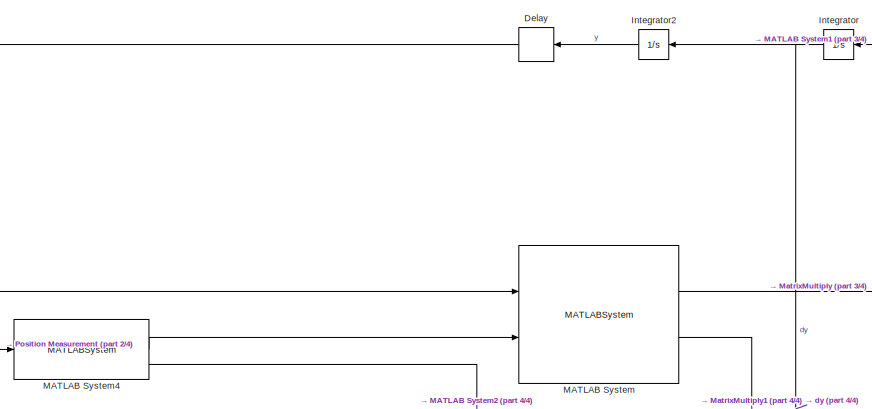
[diagram: root canvas - part 1/4, top center region]
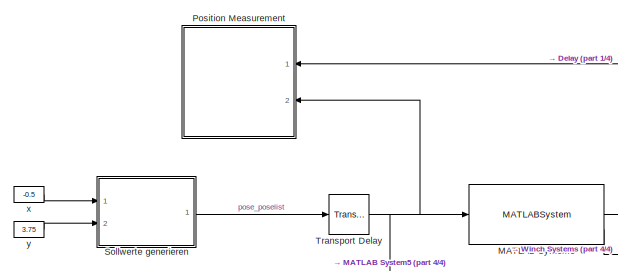
[diagram: root canvas - part 2/4, middle left region]
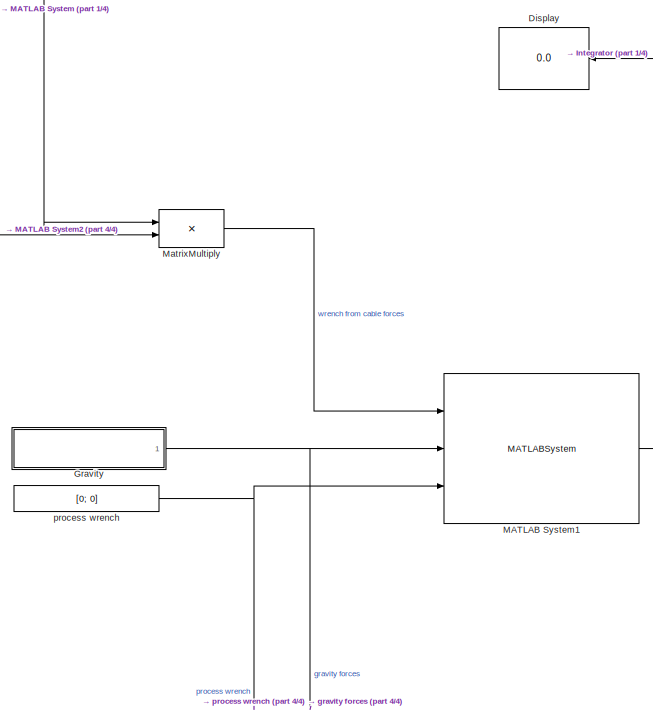
[diagram: root canvas - part 3/4, middle right region]
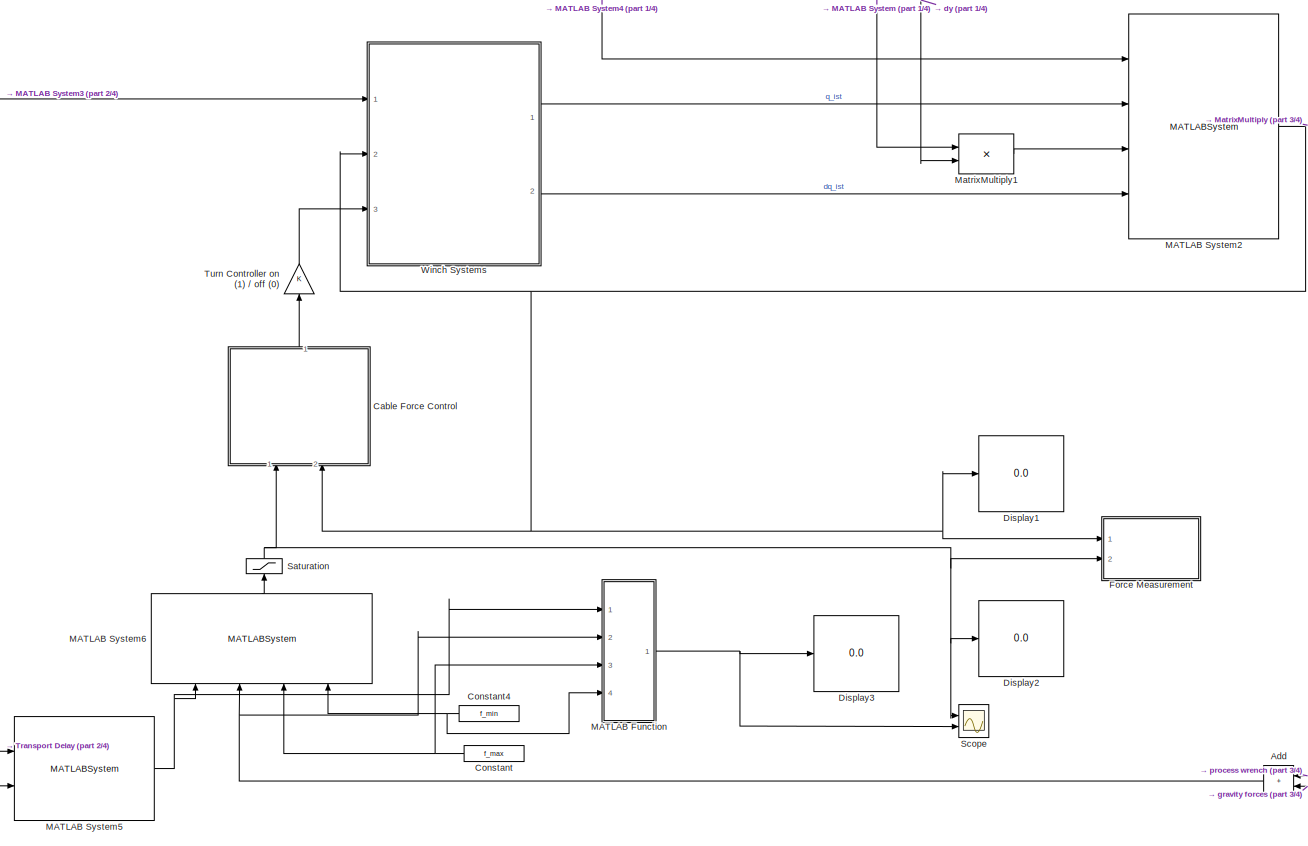
[diagram: root canvas - part 4/4, bottom center region]
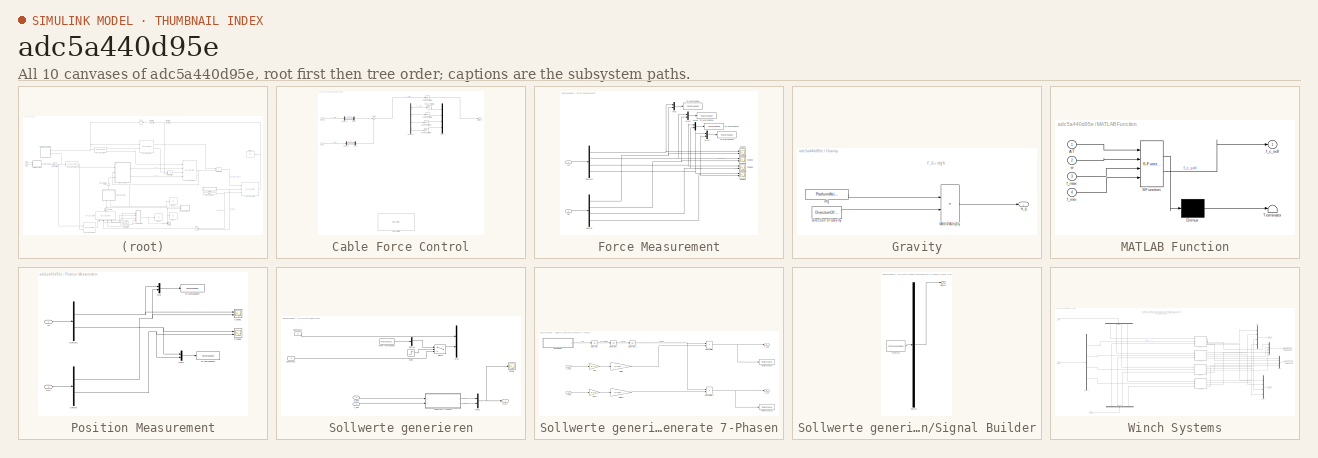
[diagram: thumbnail index - all 10 canvases of the model, root first then tree order]
MODEL slx_adc5a440d95e
KIND model
CONFIG AbsTol = auto
CONFIG EnableMultiTasking = off
CONFIG FixedStep = stepsize
CONFIG InitFcn = close all\nclear\nSimulink.sdi.clear\nrun scripts\init_model.m
CONFIG MaxStep = 1e-3
CONFIG MinStep = auto
CONFIG RelTol = 1e-3
CONFIG SampleTimeConstraint = Unconstrained
CONFIG Solver = ode3
CONFIG SolverName = ode3
CONFIG StartTime = 0.0
CONFIG StopTime = tend_sim
BLOCK [Sum] Add
  IconShape = rectangular
  Ports = [2, 1]
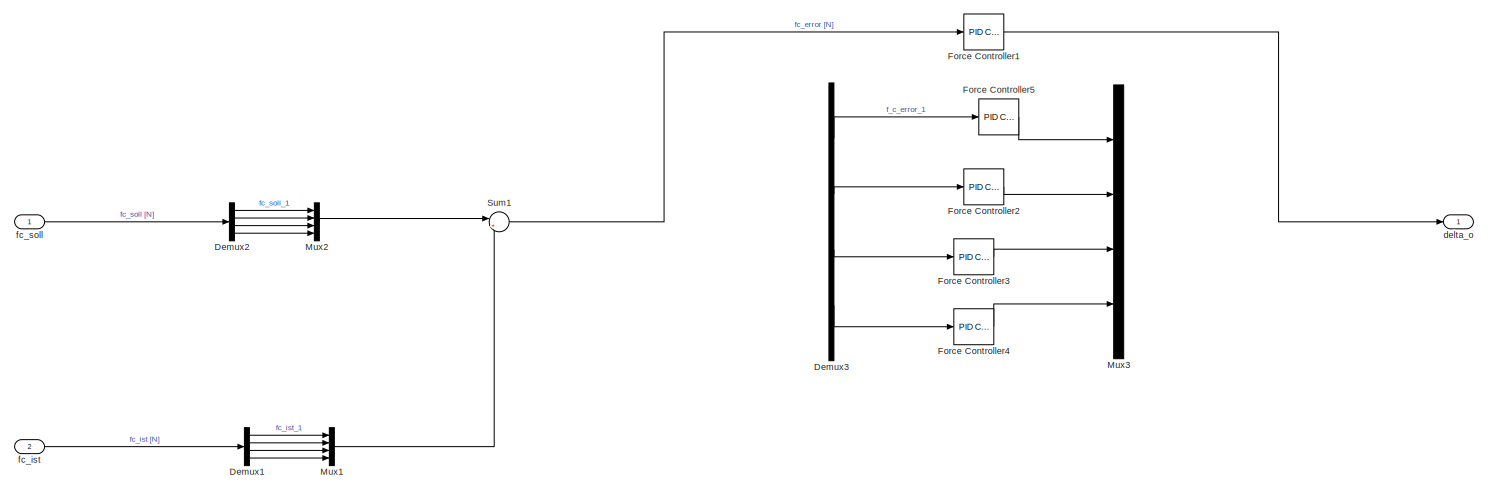
[diagram: Cable Force Control - part 1/2, full width, top band]
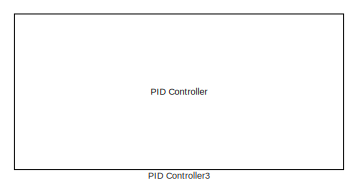
[diagram: Cable Force Control - part 2/2, bottom center region]
BLOCK [SubSystem] Cable Force Control
  Ports = [2, 1]
  RequestExecContextInheritance = off
BLOCK [Demux] Cable Force Control/Demux1
  Ports = [1, 4]
BLOCK [Demux] Cable Force Control/Demux2
  Ports = [1, 4]
BLOCK [Demux] Cable Force Control/Demux3
  Ports = [1, 4]
BLOCK [Reference] Cable Force Control/Force Controller1  REF=simulink/Continuous/PID Controller
  Ports = [1, 1]
  SourceBlock = simulink/Continuous/PID Controller
  SourceProductBaseCode = SL
  SourceType = PID 1dof
BLOCK [Reference] Cable Force Control/Force Controller2  REF=simulink/Continuous/PID Controller
  Ports = [1, 1]
  SourceBlock = simulink/Continuous/PID Controller
  SourceProductBaseCode = SL
  SourceType = PID 1dof
BLOCK [Reference] Cable Force Control/Force Controller3  REF=simulink/Continuous/PID Controller
  Ports = [1, 1]
  SourceBlock = simulink/Continuous/PID Controller
  SourceProductBaseCode = SL
  SourceType = PID 1dof
BLOCK [Reference] Cable Force Control/Force Controller4  REF=simulink/Continuous/PID Controller
  Ports = [1, 1]
  SourceBlock = simulink/Continuous/PID Controller
  SourceProductBaseCode = SL
  SourceType = PID 1dof
BLOCK [Reference] Cable Force Control/Force Controller5  REF=simulink/Continuous/PID Controller
  Ports = [1, 1]
  SourceBlock = simulink/Continuous/PID Controller
  SourceProductBaseCode = SL
  SourceType = PID 1dof
BLOCK [Mux] Cable Force Control/Mux1
  DisplayOption = bar
  Ports = [4, 1]
BLOCK [Mux] Cable Force Control/Mux2
  DisplayOption = bar
  Ports = [4, 1]
BLOCK [Mux] Cable Force Control/Mux3
  DisplayOption = bar
  Ports = [4, 1]
BLOCK [Reference] Cable Force Control/PID Controller3  REF=simulink/Continuous/PID Controller
  Ports = [1, 1]
  SourceBlock = simulink/Continuous/PID Controller
  SourceProductBaseCode = SL
  SourceType = PID 1dof
BLOCK [Sum] Cable Force Control/Sum1
  Inputs = |+-
  Ports = [2, 1]
BLOCK [Outport] Cable Force Control/delta_o
BLOCK [Inport] Cable Force Control/fc_ist
  Port = 2
BLOCK [Inport] Cable Force Control/fc_soll 
BLOCK [Constant] Constant
  Value = f_max
BLOCK [Constant] Constant4
  Value = f_min
BLOCK [Delay] Delay
  DelayLength = 1
  InputPortMap = u0
  Ports = [1, 1]
BLOCK [Display] Display
  Decimation = 1
  Ports = [1]
BLOCK [Display] Display1
  Decimation = 1
  Ports = [1]
BLOCK [Display] Display2
  Decimation = 1
  Ports = [1]
BLOCK [Display] Display3
  Decimation = 1
  Ports = [1]
BLOCK [SubSystem] Force Measurement
  Ports = [2]
  RequestExecContextInheritance = off
BLOCK [Demux] Force Measurement/Demux
  Ports = [1, 4]
BLOCK [Demux] Force Measurement/Demux1
  Ports = [1, 4]
BLOCK [Inport] Force Measurement/Ist
BLOCK [Mux] Force Measurement/Mux
  DisplayOption = bar
  Inputs = 2
  Ports = [2, 1]
BLOCK [Mux] Force Measurement/Mux1
  DisplayOption = bar
  Inputs = 2
  Ports = [2, 1]
BLOCK [Mux] Force Measurement/Mux2
  DisplayOption = bar
  Inputs = 2
  Ports = [2, 1]
BLOCK [Mux] Force Measurement/Mux3
  DisplayOption = bar
  Inputs = 2
  Ports = [2, 1]
BLOCK [Scope] Force Measurement/Scope1
  Floating = off
  NumInputPorts = 2
  Ports = [2]
  ScopeSpecificationString = Simulink.scopes.TimeScopeBlockCfg('CurrentConfiguration', extmgr.ConfigurationSet(extmgr.Configuration('Core','General UI',true),extmgr.Configuration('Core','Source UI',true),extmgr.Configuration('Sources','WiredSimulink',true,'DataLoggingVariableName','ScopeData1'),extmgr.Configuration('Visuals','Time Domain',true,'SerializedDisplays',{struct('MinYLimReal','-317.65711','MaxYLimReal','2858.91401',...<+1468ch>
BLOCK [Scope] Force Measurement/Scope2
  Floating = off
  NumInputPorts = 2
  Ports = [2]
  ScopeSpecificationString = Simulink.scopes.TimeScopeBlockCfg('CurrentConfiguration', extmgr.ConfigurationSet(extmgr.Configuration('Core','General UI',true),extmgr.Configuration('Core','Source UI',true),extmgr.Configuration('Sources','WiredSimulink',true,'DataLoggingVariableName','ScopeData2'),extmgr.Configuration('Visuals','Time Domain',true,'SerializedDisplays',{struct('MinYLimReal','-144.42325','MaxYLimReal','1299.80924',...<+1469ch>
BLOCK [Scope] Force Measurement/Scope3
  Floating = off
  NumInputPorts = 2
  Ports = [2]
  ScopeSpecificationString = Simulink.scopes.TimeScopeBlockCfg('CurrentConfiguration', extmgr.ConfigurationSet(extmgr.Configuration('Core','General UI',true),extmgr.Configuration('Core','Source UI',true),extmgr.Configuration('Sources','WiredSimulink',true,'DataLoggingVariableName','ScopeData2'),extmgr.Configuration('Visuals','Time Domain',true,'SerializedDisplays',{struct('MinYLimReal','-145.51446','MaxYLimReal','1025.06691',...<+1496ch>
BLOCK [Scope] Force Measurement/Scope4
  Floating = off
  NumInputPorts = 2
  Ports = [2]
  ScopeSpecificationString = Simulink.scopes.TimeScopeBlockCfg('CurrentConfiguration', extmgr.ConfigurationSet(extmgr.Configuration('Core','General UI',true),extmgr.Configuration('Core','Source UI',true),extmgr.Configuration('Sources','WiredSimulink',true,'DataLoggingVariableName','ScopeData3'),extmgr.Configuration('Visuals','Time Domain',true,'SerializedDisplays',{struct('MinYLimReal','-178.8413','MaxYLimReal','1356.264','YL...<+1486ch>
BLOCK [Inport] Force Measurement/Soll
  Port = 2
BLOCK [ToWorkspace] Force Measurement/To Workspace
  Decimation = 1000
  FixptAsFi = on
  MaxDataPoints = inf
  Ports = [1]
  SampleTime = -1
  VariableName = F1_ist_soll
BLOCK [ToWorkspace] Force Measurement/To Workspace1
  Decimation = 1000
  FixptAsFi = on
  MaxDataPoints = inf
  Ports = [1]
  SampleTime = -1
  VariableName = F2_ist_soll
BLOCK [ToWorkspace] Force Measurement/To Workspace2
  Decimation = 1000
  FixptAsFi = on
  MaxDataPoints = inf
  Ports = [1]
  SampleTime = -1
  VariableName = F3_ist_soll
BLOCK [ToWorkspace] Force Measurement/To Workspace3
  Decimation = 1000
  FixptAsFi = on
  MaxDataPoints = inf
  Ports = [1]
  SampleTime = -1
  VariableName = F4_ist_soll
BLOCK [SubSystem] Gravity
  Ports = [0, 1]
  RequestExecContextInheritance = off
BLOCK [Constant] Gravity/Direction of Gravity
  Value = DirectionOfGravity
BLOCK [Product] Gravity/MatrixMultiply
  Ports = [2, 1]
BLOCK [Constant] Gravity/m*g
  Value = PlatformWeight*g
BLOCK [Outport] Gravity/w_g
BLOCK [Integrator] Integrator
  InitialCondition = Dy0
  Ports = [1, 1]
BLOCK [Integrator] Integrator2
  InitialCondition = y0
  Ports = [1, 1]
BLOCK [SubSystem] MATLAB Function
  ErrorFcn = Stateflow.Translate.translate
  PermitHierarchicalResolution = ExplicitOnly
  Ports = [4, 1]
  RequestExecContextInheritance = off
  SFBlockType = MATLAB Function
  TreatAsAtomicUnit = on
BLOCK [Demux] MATLAB Function/ Demux 
  Outputs = 1
  Ports = [1, 1]
BLOCK [S-Function] MATLAB Function/ SFunction 
  EnableBusSupport = on
  FunctionName = sf_sfun
  PortCounts = [4 2]
  Ports = [4, 2]
  SFcnIsStateOwnerBlock = off
  SFunctionDeploymentMode = off
  Tag = Stateflow S-Function 2
BLOCK [Terminator] MATLAB Function/ Terminator 
BLOCK [Inport] MATLAB Function/AT
BLOCK [Outport] MATLAB Function/f_c_soll
BLOCK [Inport] MATLAB Function/f_max
  Port = 3
BLOCK [Inport] MATLAB Function/f_min
  Port = 4
BLOCK [Inport] MATLAB Function/w
  Port = 2
BLOCK [MATLABSystem] MATLAB System
  MaskDisplay = disp('sm.structurematrix_4cables');\nport_label('input',1,'p');\nport_label('input',2,'u');\nport_label('output',1,'AT');\nport_label('output',2,'J_inv');
  MaskType = sm.structurematrix_4cables
  Platform = zeros( 4, 2 )
  Ports = [2, 2]
  System = sm.structurematrix_4cables
  inv_Jacobian = on
BLOCK [MATLABSystem] MATLAB System1
  MaskDisplay = disp('dynamics.platform_4cables');\nport_label('input',1,'w_c');\nport_label('input',2,'w_g');\nport_label('input',3,'w_p');\nport_label('output',1,'ddy');
  MaskType = dynamics.platform_4cables
  Ports = [3, 1]
  System = dynamics.platform_4cables
  Weight = 50
BLOCK [MATLABSystem] MATLAB System2
  Elasticity = 172e3 * ones( 4, 1 )
  Initial_Length = zeros( 4, 1 )
  MaskDisplay = disp('cable.linearelasticity_4cables');\nport_label('input',1,'l');\nport_label('input',2,'q');\nport_label('input',3,'dl');\nport_label('input',4,'dq');\nport_label('output',1,'f_c');
  MaskType = cable.linearelasticity_4cables
  Ports = [4, 1]
  Reference_Length = ones( 4, 1 )
  SimulateUsing = Code generation
  System = cable.linearelasticity_4cables
  Viscosity = 0.03 * 172e3 * ones( 4, 1 )
BLOCK [MATLABSystem] MATLAB System3
  CableOffset = zeros( 4, 1 )
  DeltaLength = on
  FrameAnchors = [ [ -4.70, 4.30 ]; [ 3.70, 3.20 ]; [ 3.50, -5.20 ]; [ -4.50, -5.00 ] ]
  InitialPose = zeros( 2, 1 )
  MaskDisplay = disp('ik.ik_standard_4cables');\nport_label('input',1,'p');\nport_label('output',1,'l');\nport_label('output',2,'u');\nport_label('output',3,'delta_l');
  MaskType = ik.ik_standard_4cables
  Platform = zeros( 4, 2 )
  Ports = [1, 3]
  System = ik.ik_standard_4cables
  UnitVectors = on
BLOCK [MATLABSystem] MATLAB System4
  CableOffset = zeros( 4, 1 )
  DeltaLength = on
  FrameAnchors = [ [ -4.70, 4.30 ]; [ 3.70, 3.20 ]; [ 3.50, -5.20 ]; [ -4.50, -5.00 ] ]
  InitialPose = zeros( 2, 1 )
  MaskDisplay = disp('ik.ik_standard_4cables');\nport_label('input',1,'p');\nport_label('output',1,'l');\nport_label('output',2,'u');\nport_label('output',3,'delta_l');
  MaskType = ik.ik_standard_4cables
  Platform = zeros( 4, 2 )
  Ports = [1, 3]
  System = ik.ik_standard_4cables
  UnitVectors = on
BLOCK [MATLABSystem] MATLAB System5
  MaskDisplay = disp('sm.structurematrix_4cables');\nport_label('input',1,'p');\nport_label('input',2,'u');\nport_label('output',1,'AT');
  MaskType = sm.structurematrix_4cables
  Platform = zeros( 4, 2 )
  Ports = [2, 1]
  System = sm.structurematrix_4cables
  inv_Jacobian = off
BLOCK [MATLABSystem] MATLAB System6
  MaskDisplay = disp('dynamics.call_closed_form');\nport_label('input',1,'AT');\nport_label('input',2,'w');\nport_label('input',3,'f_max');\nport_label('input',4,'f_min');\nport_label('output',1,'f_c_soll');
  MaskType = dynamics.call_closed_form
  Ports = [4, 1]
  System = dynamics.call_closed_form
BLOCK [Product] MatrixMultiply
  Multiplication = Matrix(*)
  Ports = [2, 1]
BLOCK [Product] MatrixMultiply1
  Multiplication = Matrix(*)
  Ports = [2, 1]
BLOCK [SubSystem] Position Measurement
  Ports = [2]
  RequestExecContextInheritance = off
BLOCK [Demux] Position Measurement/Demux
  Outputs = 2
  Ports = [1, 2]
BLOCK [Demux] Position Measurement/Demux1
  Outputs = 2
  Ports = [1, 2]
BLOCK [Inport] Position Measurement/Ist
BLOCK [Mux] Position Measurement/Mux
  DisplayOption = bar
  Inputs = 2
  Ports = [2, 1]
BLOCK [Mux] Position Measurement/Mux1
  DisplayOption = bar
  Inputs = 2
  Ports = [2, 1]
BLOCK [Scope] Position Measurement/Scope1
  Floating = off
  NumInputPorts = 2
  Ports = [2]
  ScopeSpecificationString = Simulink.scopes.TimeScopeBlockCfg('CurrentConfiguration', extmgr.ConfigurationSet(extmgr.Configuration('Core','General UI',true),extmgr.Configuration('Core','Source UI',true),extmgr.Configuration('Sources','WiredSimulink',true,'DataLoggingVariableName','ScopeData1'),extmgr.Configuration('Visuals','Time Domain',true,'SerializedDisplays',{struct('MinYLimReal','-0.56912','MaxYLimReal','0.06332','YLab...<+1449ch>
BLOCK [Scope] Position Measurement/Scope2
  Floating = off
  NumInputPorts = 2
  Ports = [2]
  ScopeSpecificationString = Simulink.scopes.TimeScopeBlockCfg('CurrentConfiguration', extmgr.ConfigurationSet(extmgr.Configuration('Core','General UI',true),extmgr.Configuration('Core','Source UI',true),extmgr.Configuration('Sources','WiredSimulink',true,'DataLoggingVariableName','ScopeData2'),extmgr.Configuration('Visuals','Time Domain',true,'SerializedDisplays',{struct('MinYLimReal','-0.53897','MaxYLimReal','4.83787','YLab...<+1452ch>
BLOCK [Inport] Position Measurement/Soll
  Port = 2
BLOCK [ToWorkspace] Position Measurement/To Workspace3
  Decimation = 1000
  FixptAsFi = on
  MaxDataPoints = inf
  Ports = [1]
  SampleTime = -1
  Save2DSignal = 2-D array (concatenate along first dimension)
  VariableName = x_ist_soll
BLOCK [ToWorkspace] Position Measurement/To Workspace4
  Decimation = 1000
  FixptAsFi = on
  MaxDataPoints = inf
  Ports = [1]
  SampleTime = -1
  Save2DSignal = 2-D array (concatenate along first dimension)
  VariableName = y_ist_soll
BLOCK [Saturate] Saturation
  LowerLimit = 50
  UpperLimit = 1200
BLOCK [Scope] Scope
  Floating = off
  NumInputPorts = 2
  Ports = [2]
  ScopeSpecificationString = Simulink.scopes.TimeScopeBlockCfg('CurrentConfiguration', extmgr.ConfigurationSet(extmgr.Configuration('Core','General UI',true),extmgr.Configuration('Core','Source UI',true),extmgr.Configuration('Sources','WiredSimulink',true,'DataLoggingVariableName','ScopeData1'),extmgr.Configuration('Visuals','Time Domain',true,'SerializedDisplays',{struct('MinYLimReal','-185.99994','MaxYLimReal','1353.99999',...<+1585ch>
BLOCK [SubSystem] Sollwerte generieren
  Ports = [2, 1]
  RequestExecContextInheritance = off
BLOCK [Constant] Sollwerte generieren/Constant1
  Commented = on
  Value = 0
BLOCK [Constant] Sollwerte generieren/Constant2
  Commented = on
  Value = 0
BLOCK [Demux] Sollwerte generieren/Demux
  Commented = on
  Outputs = 2
  Ports = [1, 2]
BLOCK [FromWorkspace] Sollwerte generieren/From Workspace
  Commented = on
  VariableName = in_poselist
BLOCK [Mux] Sollwerte generieren/Mux
  Commented = on
  DisplayOption = bar
  Inputs = 2
  Ports = [2, 1]
BLOCK [Mux] Sollwerte generieren/Mux1
  DisplayOption = bar
  Inputs = 2
  Ports = [2, 1]
BLOCK [Outport] Sollwerte generieren/Out1
BLOCK [Scope] Sollwerte generieren/Scope
  Floating = off
  NumInputPorts = 1
  Ports = [1]
  ScopeSpecificationString = Simulink.scopes.TimeScopeBlockCfg('CurrentConfiguration', extmgr.ConfigurationSet(extmgr.Configuration('Core','General UI',true),extmgr.Configuration('Core','Source UI',true),extmgr.Configuration('Sources','WiredSimulink',true,'DataLoggingVariableName','ScopeData1'),extmgr.Configuration('Visuals','Time Domain',true,'SerializedDisplays',{struct('MinYLimReal','-1.02443','MaxYLimReal','4.25293','YLab...<+1400ch>
BLOCK [Step] Sollwerte generieren/Step
  Commented = on
  SampleTime = 0
BLOCK [Switch] Sollwerte generieren/Switch
  Commented = on
  Criteria = u2 > Threshold
  InputSameDT = off
  SaturateOnIntegerOverflow = off
BLOCK [SubSystem] Sollwerte generieren/generate 7-Phasen
  Ports = [2, 2]
  RequestExecContextInheritance = off
BLOCK [Gain] Sollwerte generieren/generate 7-Phasen/Gain
  Gain = 1/1.1
BLOCK [Gain] Sollwerte generieren/generate 7-Phasen/Gain1
  Gain = 1/1.1
BLOCK [Integrator] Sollwerte generieren/generate 7-Phasen/Integrator
  Ports = [1, 1]
BLOCK [Integrator] Sollwerte generieren/generate 7-Phasen/Integrator1
  Ports = [1, 1]
BLOCK [Integrator] Sollwerte generieren/generate 7-Phasen/Integrator2
  Ports = [1, 1]
BLOCK [Product] Sollwerte generieren/generate 7-Phasen/MatrixMultiply
  Ports = [2, 1]
BLOCK [Product] Sollwerte generieren/generate 7-Phasen/MatrixMultiply1
  Ports = [2, 1]
BLOCK [Gain] Sollwerte generieren/generate 7-Phasen/Multiply
  Gain = 1/(10*tend_sim)
BLOCK [Gain] Sollwerte generieren/generate 7-Phasen/Multiply1
  Gain = 1/(10*tend_sim)
BLOCK [SubSystem] Sollwerte generieren/generate 7-Phasen/Signal Builder
  ClipboardFcn = sigbuilder_block('clipboard');
  CloseFcn = sigbuilder_block('close');
  ContinueFcn = sigbuilder_block('continue');
  CopyFcn = sigbuilder_block('copy');
  DeleteFcn = sigbuilder_block('delete');
  LoadFcn = sigbuilder_block('load');
  MaskHideContents = on
  ModelCloseFcn = sigbuilder_block('modelClose');
  NameChangeFcn = sigbuilder_block('namechange');
  OpenFcn = sigbuilder_block('open',[6 30 1428 681.75 ]);
  PauseFcn = sigbuilder_block('pause');
  Ports = [0, 1]
  PreSaveFcn = sigbuilder_block('preSave');
  RequestExecContextInheritance = off
  StartFcn = sigbuilder_block('start');
  StopFcn = sigbuilder_block('stop');
  Tag = STV Subsys
BLOCK [Demux] Sollwerte generieren/generate 7-Phasen/Signal Builder/Demux
  DisplayOption = none
  Outputs = 1
  Ports = [1, 1]
  Tag = STV Demux
BLOCK [FromWorkspace] Sollwerte generieren/generate 7-Phasen/Signal Builder/FromWs
  Tag = STV FromWs
  VariableName = tuvar
BLOCK [Outport] Sollwerte generieren/generate 7-Phasen/Signal Builder/Signal 1
  Tag = STV Outport
BLOCK [ToWorkspace] Sollwerte generieren/generate 7-Phasen/To Workspace
  Commented = on
  FixptAsFi = on
  MaxDataPoints = inf
  Ports = [1]
  SampleTime = -1
  Save2DSignal = 2-D array (concatenate along first dimension)
  VariableName = x_7_phase
BLOCK [ToWorkspace] Sollwerte generieren/generate 7-Phasen/To Workspace1
  Commented = on
  FixptAsFi = on
  MaxDataPoints = inf
  Ports = [1]
  SampleTime = -1
  Save2DSignal = 2-D array (concatenate along first dimension)
  VariableName = y_7_phase
BLOCK [Inport] Sollwerte generieren/generate 7-Phasen/x_end
BLOCK [Outport] Sollwerte generieren/generate 7-Phasen/x_soll
BLOCK [Inport] Sollwerte generieren/generate 7-Phasen/y_end
  Port = 2
BLOCK [Outport] Sollwerte generieren/generate 7-Phasen/y_soll
  Port = 2
BLOCK [Inport] Sollwerte generieren/x_end
BLOCK [Inport] Sollwerte generieren/y_end
  Port = 2
BLOCK [TransportDelay] Transport Delay
  Ports = [1, 1]
BLOCK [Gain] Turn Controller on (1) // off (0)
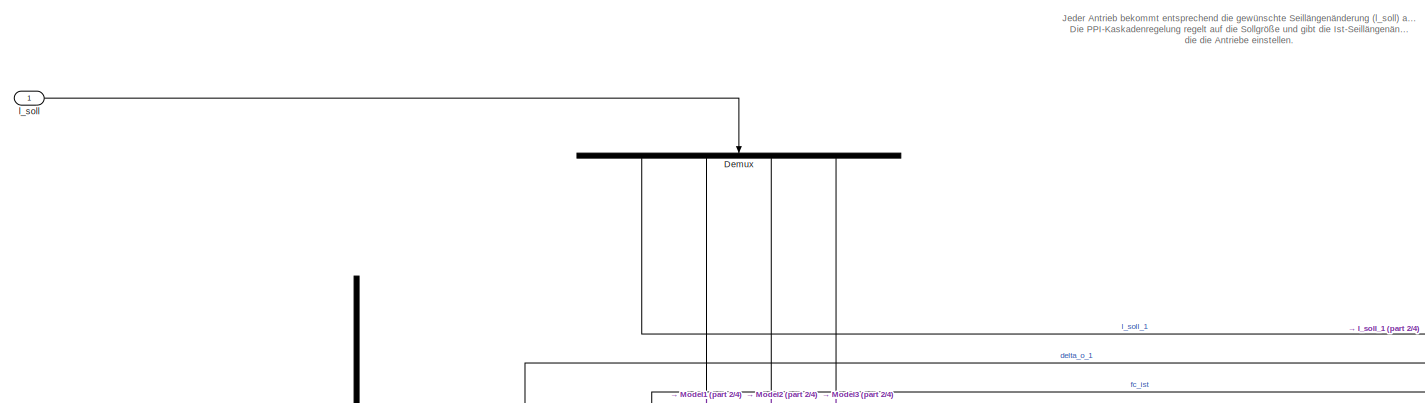
[diagram: Winch Systems - part 1/4, top left region]
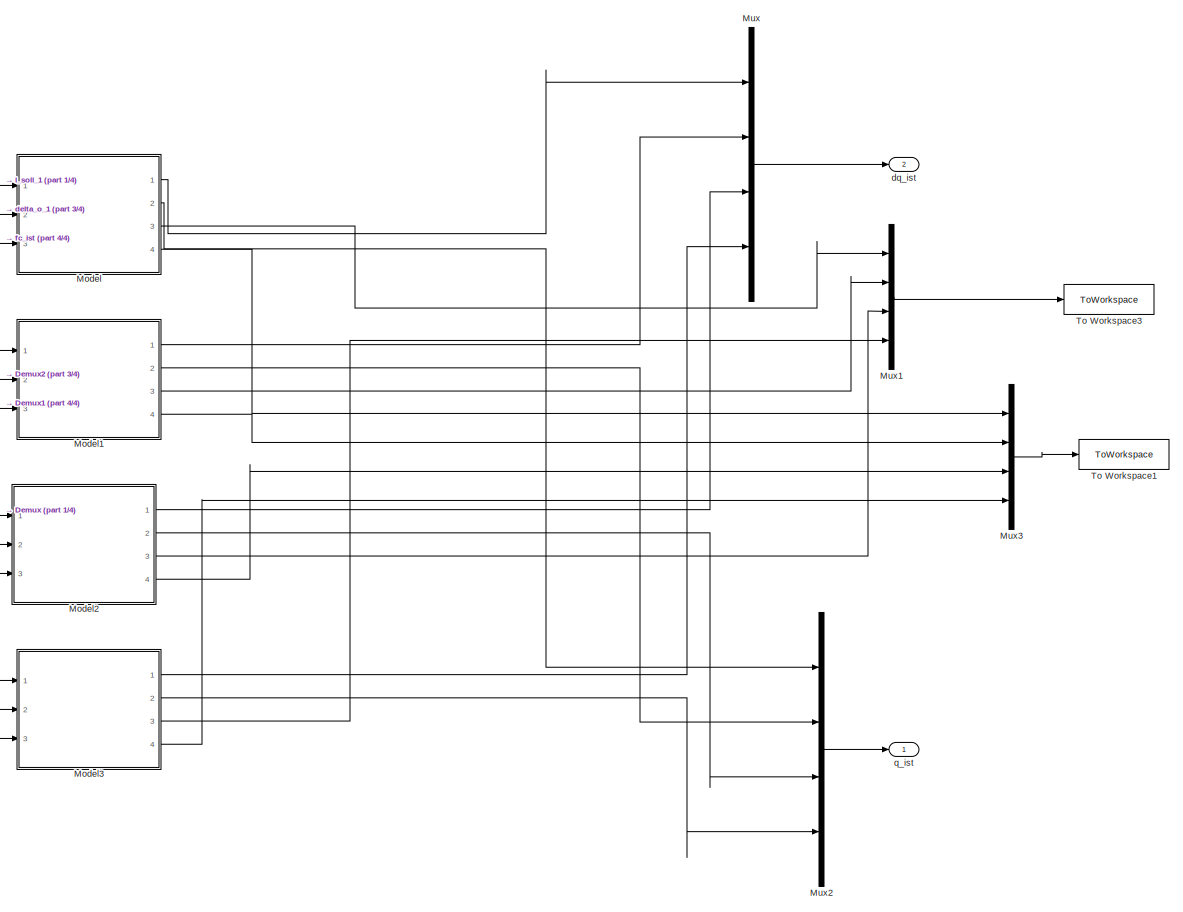
[diagram: Winch Systems - part 2/4, middle right region]
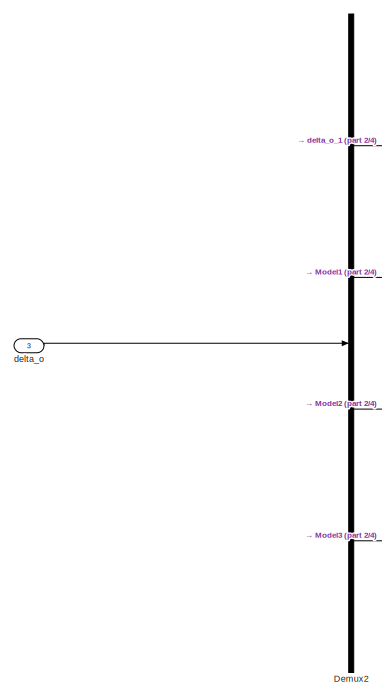
[diagram: Winch Systems - part 3/4, middle left region]
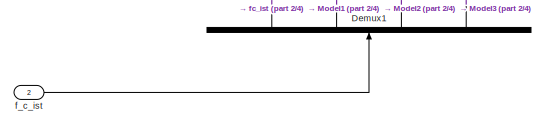
[diagram: Winch Systems - part 4/4, bottom left region]
BLOCK [SubSystem] Winch Systems
  Ports = [3, 2]
  RequestExecContextInheritance = off
BLOCK [Demux] Winch Systems/Demux
  Ports = [1, 4]
BLOCK [Demux] Winch Systems/Demux1
  Ports = [1, 4]
BLOCK [Demux] Winch Systems/Demux2
  Ports = [1, 4]
BLOCK [ModelReference] Winch Systems/Model
  ModelNameDialog = Seilwinde.slx
  ModelReferenceVersion = 1.94
  Ports = [3, 4]
BLOCK [ModelReference] Winch Systems/Model1
  ModelNameDialog = Seilwinde.slx
  ModelReferenceVersion = 1.94
  Ports = [3, 4]
BLOCK [ModelReference] Winch Systems/Model2
  ModelNameDialog = Seilwinde.slx
  ModelReferenceVersion = 1.94
  Ports = [3, 4]
BLOCK [ModelReference] Winch Systems/Model3
  ModelNameDialog = Seilwinde.slx
  ModelReferenceVersion = 1.94
  Ports = [3, 4]
BLOCK [Mux] Winch Systems/Mux
  DisplayOption = bar
  Ports = [4, 1]
BLOCK [Mux] Winch Systems/Mux1
  DisplayOption = bar
  Ports = [4, 1]
BLOCK [Mux] Winch Systems/Mux2
  DisplayOption = bar
  Ports = [4, 1]
BLOCK [Mux] Winch Systems/Mux3
  DisplayOption = bar
  Ports = [4, 1]
BLOCK [ToWorkspace] Winch Systems/To Workspace1
  Decimation = 1000
  FixptAsFi = on
  MaxDataPoints = inf
  Ports = [1]
  SampleTime = -1
  VariableName = I_soll_ist
BLOCK [ToWorkspace] Winch Systems/To Workspace3
  Decimation = 1000
  FixptAsFi = on
  MaxDataPoints = inf
  Ports = [1]
  SampleTime = -1
  VariableName = U_soll_ist
BLOCK [Inport] Winch Systems/delta_o
  Port = 3
BLOCK [Outport] Winch Systems/dq_ist
  Port = 2
BLOCK [Inport] Winch Systems/f_c_ist
  Port = 2
BLOCK [Inport] Winch Systems/l_soll
BLOCK [Outport] Winch Systems/q_ist
BLOCK [Constant] process wrench
  Value = [0; 0]
BLOCK [Constant] x
  SampleTime = 3.75
  Value = -0.5
BLOCK [Constant] y
  Value = 3.75
ANNOTATION Gravity: F_G = m*g*h
ANNOTATION Winch Systems: Jeder Antrieb bekommt entsprechend die gewünschte Seillängenänderung (l_soll) als Stellgröße. Die PPI-Kaskadenregelung regelt auf die Sollgröße und gibt die Ist-Seillängenänderung (q_ist) zurück, die die Antriebe einstellen.
NET Add:1 -> MATLAB Function:2, MATLAB System6:2
LINE Cable Force Control/Demux1:1 -> Cable Force Control/Mux1:1
LINE Cable Force Control/Demux1:2 -> Cable Force Control/Mux1:2
LINE Cable Force Control/Demux1:3 -> Cable Force Control/Mux1:3
LINE Cable Force Control/Demux1:4 -> Cable Force Control/Mux1:4
LINE Cable Force Control/Demux2:1 -> Cable Force Control/Mux2:1
LINE Cable Force Control/Demux2:2 -> Cable Force Control/Mux2:2
LINE Cable Force Control/Demux2:3 -> Cable Force Control/Mux2:3
LINE Cable Force Control/Demux2:4 -> Cable Force Control/Mux2:4
LINE Cable Force Control/Demux3:1 -> Cable Force Control/Force Controller5:1
LINE Cable Force Control/Demux3:2 -> Cable Force Control/Force Controller2:1
LINE Cable Force Control/Demux3:3 -> Cable Force Control/Force Controller3:1
LINE Cable Force Control/Demux3:4 -> Cable Force Control/Force Controller4:1
LINE Cable Force Control/Force Controller1:1 -> Cable Force Control/delta_o:1
LINE Cable Force Control/Force Controller2:1 -> Cable Force Control/Mux3:2
LINE Cable Force Control/Force Controller3:1 -> Cable Force Control/Mux3:3
LINE Cable Force Control/Force Controller4:1 -> Cable Force Control/Mux3:4
LINE Cable Force Control/Force Controller5:1 -> Cable Force Control/Mux3:1
LINE Cable Force Control/Mux1:1 -> Cable Force Control/Sum1:2
LINE Cable Force Control/Mux2:1 -> Cable Force Control/Sum1:1
LINE Cable Force Control/Sum1:1 -> Cable Force Control/Force Controller1:1
LINE Cable Force Control/fc_ist:1 -> Cable Force Control/Demux1:1
LINE Cable Force Control/fc_soll :1 -> Cable Force Control/Demux2:1
LINE Cable Force Control:1 -> Turn Controller on (1) // off (0):1
NET Constant4:1 -> MATLAB Function:4, MATLAB System6:4
NET Constant:1 -> MATLAB Function:3, MATLAB System6:3
NET Delay:1 -> MATLAB System4:1, MATLAB System:1, Position Measurement:1
NET Force Measurement/Demux1:1 -> Force Measurement/Mux:1, Force Measurement/Scope1:1
NET Force Measurement/Demux1:2 -> Force Measurement/Mux1:1, Force Measurement/Scope2:1
NET Force Measurement/Demux1:3 -> Force Measurement/Mux2:1, Force Measurement/Scope3:1
NET Force Measurement/Demux1:4 -> Force Measurement/Mux3:1, Force Measurement/Scope4:1
NET Force Measurement/Demux:1 -> Force Measurement/Mux:2, Force Measurement/Scope1:2
NET Force Measurement/Demux:2 -> Force Measurement/Mux1:2, Force Measurement/Scope2:2
NET Force Measurement/Demux:3 -> Force Measurement/Mux2:2, Force Measurement/Scope3:2
NET Force Measurement/Demux:4 -> Force Measurement/Mux3:2, Force Measurement/Scope4:2
LINE Force Measurement/Ist:1 -> Force Measurement/Demux1:1
LINE Force Measurement/Mux1:1 -> Force Measurement/To Workspace1:1
LINE Force Measurement/Mux2:1 -> Force Measurement/To Workspace2:1
LINE Force Measurement/Mux3:1 -> Force Measurement/To Workspace3:1
LINE Force Measurement/Mux:1 -> Force Measurement/To Workspace:1
LINE Force Measurement/Soll:1 -> Force Measurement/Demux:1
LINE Gravity/Direction of Gravity:1 -> Gravity/MatrixMultiply:2
LINE Gravity/MatrixMultiply:1 -> Gravity/w_g:1
LINE Gravity/m*g:1 -> Gravity/MatrixMultiply:1
NET Gravity:1 -> Add:2, MATLAB System1:2
LINE Integrator2:1 -> Delay:1
NET Integrator:1 -> Integrator2:1, MatrixMultiply1:2
NET MATLAB Function:1 -> Display3:1, Scope:2
NET MATLAB System1:1 -> Display:1, Integrator:1
NET MATLAB System2:1 -> Cable Force Control:2, Display1:1, Force Measurement:1, MatrixMultiply:2, Winch Systems:2
LINE MATLAB System3:2 -> MATLAB System5:2
LINE MATLAB System3:3 -> Winch Systems:1
LINE MATLAB System4:2 -> MATLAB System:2
LINE MATLAB System4:3 -> MATLAB System2:1
NET MATLAB System5:1 -> MATLAB Function:1, MATLAB System6:1
LINE MATLAB System6:1 -> Saturation:1
LINE MATLAB System:1 -> MatrixMultiply:1
LINE MATLAB System:2 -> MatrixMultiply1:1
LINE MatrixMultiply1:1 -> MATLAB System2:3
LINE MatrixMultiply:1 -> MATLAB System1:1
NET Position Measurement/Demux1:1 -> Position Measurement/Mux:1, Position Measurement/Scope1:1
NET Position Measurement/Demux1:2 -> Position Measurement/Mux1:1, Position Measurement/Scope2:1
NET Position Measurement/Demux:1 -> Position Measurement/Mux:2, Position Measurement/Scope1:2
NET Position Measurement/Demux:2 -> Position Measurement/Mux1:2, Position Measurement/Scope2:2
LINE Position Measurement/Ist:1 -> Position Measurement/Demux1:1
LINE Position Measurement/Mux1:1 -> Position Measurement/To Workspace4:1
LINE Position Measurement/Mux:1 -> Position Measurement/To Workspace3:1
LINE Position Measurement/Soll:1 -> Position Measurement/Demux:1
NET Saturation:1 -> Cable Force Control:1, Display2:1, Force Measurement:2, Scope:1
LINE Sollwerte generieren/Constant1:1 -> Sollwerte generieren/Switch:3
LINE Sollwerte generieren/Constant2:1 -> Sollwerte generieren/Mux:1
LINE Sollwerte generieren/Demux:1 -> Sollwerte generieren/Switch:1
LINE Sollwerte generieren/From Workspace:1 -> Sollwerte generieren/Demux:1
NET Sollwerte generieren/Mux1:1 -> Sollwerte generieren/Out1:1, Sollwerte generieren/Scope:1
LINE Sollwerte generieren/Step:1 -> Sollwerte generieren/Switch:2
LINE Sollwerte generieren/Switch:1 -> Sollwerte generieren/Mux:2
LINE Sollwerte generieren/generate 7-Phasen/Gain1:1 -> Sollwerte generieren/generate 7-Phasen/Multiply1:1
LINE Sollwerte generieren/generate 7-Phasen/Gain:1 -> Sollwerte generieren/generate 7-Phasen/Multiply:1
LINE Sollwerte generieren/generate 7-Phasen/Integrator1:1 -> Sollwerte generieren/generate 7-Phasen/Integrator2:1
NET Sollwerte generieren/generate 7-Phasen/Integrator2:1 -> Sollwerte generieren/generate 7-Phasen/MatrixMultiply1:1, Sollwerte generieren/generate 7-Phasen/MatrixMultiply:1
LINE Sollwerte generieren/generate 7-Phasen/Integrator:1 -> Sollwerte generieren/generate 7-Phasen/Integrator1:1
NET Sollwerte generieren/generate 7-Phasen/MatrixMultiply1:1 -> Sollwerte generieren/generate 7-Phasen/To Workspace1:1, Sollwerte generieren/generate 7-Phasen/y_soll:1
NET Sollwerte generieren/generate 7-Phasen/MatrixMultiply:1 -> Sollwerte generieren/generate 7-Phasen/To Workspace:1, Sollwerte generieren/generate 7-Phasen/x_soll:1
LINE Sollwerte generieren/generate 7-Phasen/Multiply1:1 -> Sollwerte generieren/generate 7-Phasen/MatrixMultiply1:2
LINE Sollwerte generieren/generate 7-Phasen/Multiply:1 -> Sollwerte generieren/generate 7-Phasen/MatrixMultiply:2
LINE Sollwerte generieren/generate 7-Phasen/Signal Builder:1 -> Sollwerte generieren/generate 7-Phasen/Integrator:1
LINE Sollwerte generieren/generate 7-Phasen/x_end:1 -> Sollwerte generieren/generate 7-Phasen/Gain:1
LINE Sollwerte generieren/generate 7-Phasen/y_end:1 -> Sollwerte generieren/generate 7-Phasen/Gain1:1
LINE Sollwerte generieren/generate 7-Phasen:1 -> Sollwerte generieren/Mux1:1
LINE Sollwerte generieren/generate 7-Phasen:2 -> Sollwerte generieren/Mux1:2
LINE Sollwerte generieren/x_end:1 -> Sollwerte generieren/generate 7-Phasen:1
LINE Sollwerte generieren/y_end:1 -> Sollwerte generieren/generate 7-Phasen:2
LINE Sollwerte generieren:1 -> Transport Delay:1
NET Transport Delay:1 -> MATLAB System3:1, MATLAB System5:1, Position Measurement:2
LINE Turn Controller on (1) // off (0):1 -> Winch Systems:3
LINE Winch Systems/Demux1:1 -> Winch Systems/Model:3
LINE Winch Systems/Demux1:2 -> Winch Systems/Model1:3
LINE Winch Systems/Demux1:3 -> Winch Systems/Model2:3
LINE Winch Systems/Demux1:4 -> Winch Systems/Model3:3
LINE Winch Systems/Demux2:1 -> Winch Systems/Model:2
LINE Winch Systems/Demux2:2 -> Winch Systems/Model1:2
LINE Winch Systems/Demux2:3 -> Winch Systems/Model2:2
LINE Winch Systems/Demux2:4 -> Winch Systems/Model3:2
LINE Winch Systems/Demux:1 -> Winch Systems/Model:1
LINE Winch Systems/Demux:2 -> Winch Systems/Model1:1
LINE Winch Systems/Demux:3 -> Winch Systems/Model2:1
LINE Winch Systems/Demux:4 -> Winch Systems/Model3:1
LINE Winch Systems/Model1:1 -> Winch Systems/Mux:2
LINE Winch Systems/Model1:2 -> Winch Systems/Mux2:2
LINE Winch Systems/Model1:3 -> Winch Systems/Mux1:2
LINE Winch Systems/Model1:4 -> Winch Systems/Mux3:2
LINE Winch Systems/Model2:1 -> Winch Systems/Mux:3
LINE Winch Systems/Model2:2 -> Winch Systems/Mux2:3
LINE Winch Systems/Model2:3 -> Winch Systems/Mux1:3
LINE Winch Systems/Model2:4 -> Winch Systems/Mux3:3
LINE Winch Systems/Model3:1 -> Winch Systems/Mux:4
LINE Winch Systems/Model3:2 -> Winch Systems/Mux2:4
LINE Winch Systems/Model3:3 -> Winch Systems/Mux1:4
LINE Winch Systems/Model3:4 -> Winch Systems/Mux3:4
LINE Winch Systems/Model:1 -> Winch Systems/Mux:1
LINE Winch Systems/Model:2 -> Winch Systems/Mux2:1
LINE Winch Systems/Model:3 -> Winch Systems/Mux1:1
LINE Winch Systems/Model:4 -> Winch Systems/Mux3:1
LINE Winch Systems/Mux1:1 -> Winch Systems/To Workspace3:1
LINE Winch Systems/Mux2:1 -> Winch Systems/q_ist:1
LINE Winch Systems/Mux3:1 -> Winch Systems/To Workspace1:1
LINE Winch Systems/Mux:1 -> Winch Systems/dq_ist:1
LINE Winch Systems/delta_o:1 -> Winch Systems/Demux2:1
LINE Winch Systems/f_c_ist:1 -> Winch Systems/Demux1:1
LINE Winch Systems/l_soll:1 -> Winch Systems/Demux:1
LINE Winch Systems:1 -> MATLAB System2:2
LINE Winch Systems:2 -> MATLAB System2:4
NET process wrench:1 -> Add:1, MATLAB System1:3
LINE x:1 -> Sollwerte generieren:1
LINE y:1 -> Sollwerte generieren:2
note: NET lines group one-source signal fan-out (src -> all destinations, sorted); 1:1 wires keep LINE
CHART MATLAB Function states=1 transitions=1
  STATE_LABEL 'eML_blk_kernel()'
  STATE_LABEL 'SCRIPT:\n  function f_c_soll = call_advanced_closed_form(AT, w, f_max, f_min)\n              StructureMat    = AT;\n            Wrench          = w;\n            ForceMin        = f_min;\n         \tForceMax        = f_max;\n          \tf_c_soll = advanced_closed_form(Wrench, StructureMat, ForceMin, ForceMax);\n  end\n\n\n'
